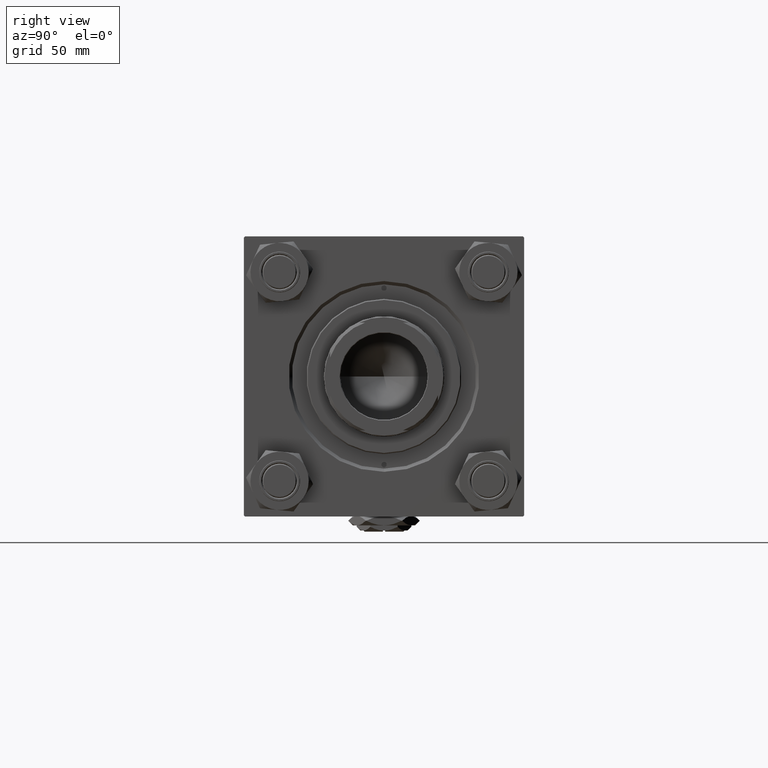
[diagram: clean part render]
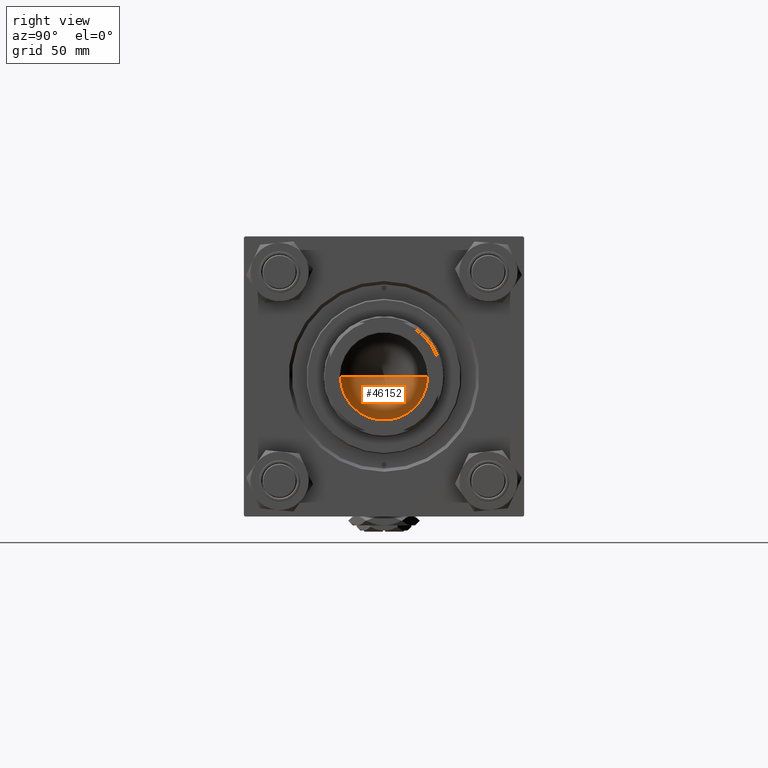
[diagram: same view with one face highlighted and labeled with its STEP entity id]
A machine part, right view. The second image highlights one B-rep face of the part: STEP entity #46152.
In plain terms, the highlighted conical surface has half-angle 59 deg.
Its self-contained STEP definition (entity closure, byte-faithful):
#886 = VERTEX_POINT ( 'NONE', #34226 ) ;
#3564 = DIRECTION ( 'NONE',  ( 1.000000000000000000, 0.000000000000000000, 0.000000000000000000 ) ) ;
#4070 = ORIENTED_EDGE ( 'NONE', *, *, #14942, .T. ) ;
#4846 = CIRCLE ( 'NONE', #47273, 20.24999999999998934 ) ;
#10665 = EDGE_CURVE ( 'NONE', #886, #10673, #36359, .T. ) ;
#10673 = VERTEX_POINT ( 'NONE', #13005 ) ;
#11529 = EDGE_LOOP ( 'NONE', ( #17679, #4070, #39369 ) ) ;
#11784 = AXIS2_PLACEMENT_3D ( 'NONE', #47908, #14754, #3564 ) ;
#13005 = CARTESIAN_POINT ( 'NONE',  ( -20.24999999999998934, 2.479909768273389117E-15, 117.0000000000000142 ) ) ;
#13218 = DIRECTION ( 'NONE',  ( 0.8571673007021115565, 0.000000000000000000, 0.5150380749100554878 ) ) ;
#14624 = VECTOR ( 'NONE', #51879, 1000.000000000000000 ) ;
#14754 = DIRECTION ( 'NONE',  ( -0.000000000000000000, -0.000000000000000000, 1.000000000000000000 ) ) ;
#14942 = EDGE_CURVE ( 'NONE', #886, #35446, #46128, .T. ) ;
#17679 = ORIENTED_EDGE ( 'NONE', *, *, #10665, .F. ) ;
#18991 = FACE_OUTER_BOUND ( 'NONE', #11529, .T. ) ;
#28920 = CARTESIAN_POINT ( 'NONE',  ( -20.24999999999998934, 2.479909768273389117E-15, 117.0000000000000142 ) ) ;
#29175 = EDGE_CURVE ( 'NONE', #35446, #10673, #4846, .T. ) ;
#30724 = CARTESIAN_POINT ( 'NONE',  ( 20.24999999999998934, 0.000000000000000000, 117.0000000000000142 ) ) ;
#34226 = CARTESIAN_POINT ( 'NONE',  ( -1.584115414415908206E-14, 0.000000000000000000, 104.8325724646918928 ) ) ;
#35446 = VERTEX_POINT ( 'NONE', #30724 ) ;
#36359 = LINE ( 'NONE', #28920, #14624 ) ;
#37368 = CARTESIAN_POINT ( 'NONE',  ( 20.24999999999998934, 0.000000000000000000, 117.0000000000000142 ) ) ;
#38567 = DIRECTION ( 'NONE',  ( -0.000000000000000000, -0.000000000000000000, 1.000000000000000000 ) ) ;
#39369 = ORIENTED_EDGE ( 'NONE', *, *, #29175, .T. ) ;
#40637 = CONICAL_SURFACE ( 'NONE', #11784, 20.24999999999998934, 1.029744258676652979 ) ;
#46128 = LINE ( 'NONE', #37368, #49425 ) ;
#46152 = ADVANCED_FACE ( 'NONE', ( #18991 ), #40637, .F. ) ;
#47273 = AXIS2_PLACEMENT_3D ( 'NONE', #49464, #38567, #51046 ) ;
#47908 = CARTESIAN_POINT ( 'NONE',  ( 0.000000000000000000, 0.000000000000000000, 117.0000000000000142 ) ) ;
#49425 = VECTOR ( 'NONE', #13218, 1000.000000000000000 ) ;
#49464 = CARTESIAN_POINT ( 'NONE',  ( 0.000000000000000000, 0.000000000000000000, 117.0000000000000142 ) ) ;
#51046 = DIRECTION ( 'NONE',  ( 1.000000000000000000, 0.000000000000000000, 0.000000000000000000 ) ) ;
#51879 = DIRECTION ( 'NONE',  ( -0.8571673007021115565, 1.049727191138617710E-16, 0.5150380749100554878 ) ) ;